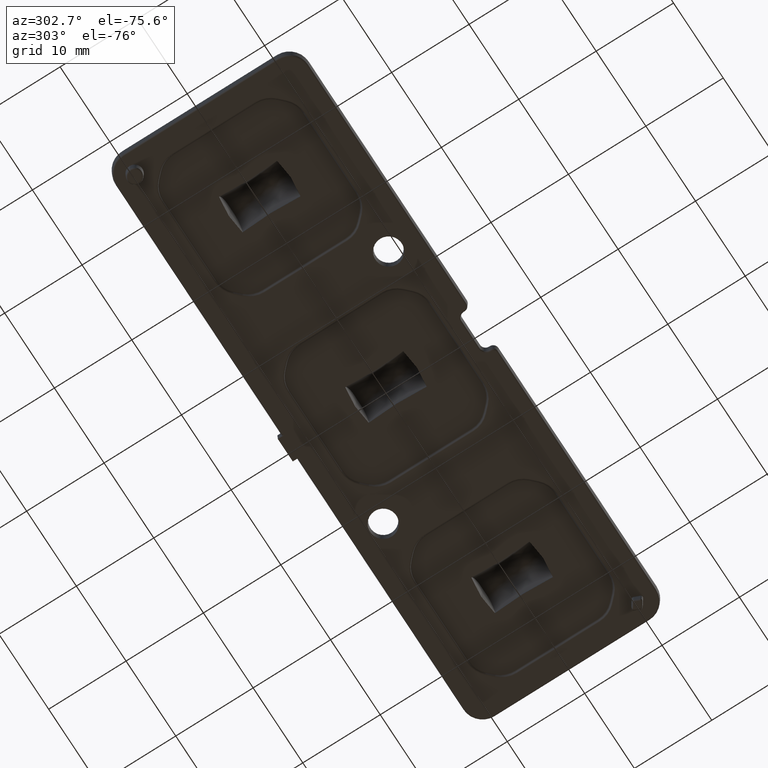
[diagram: clean part render]
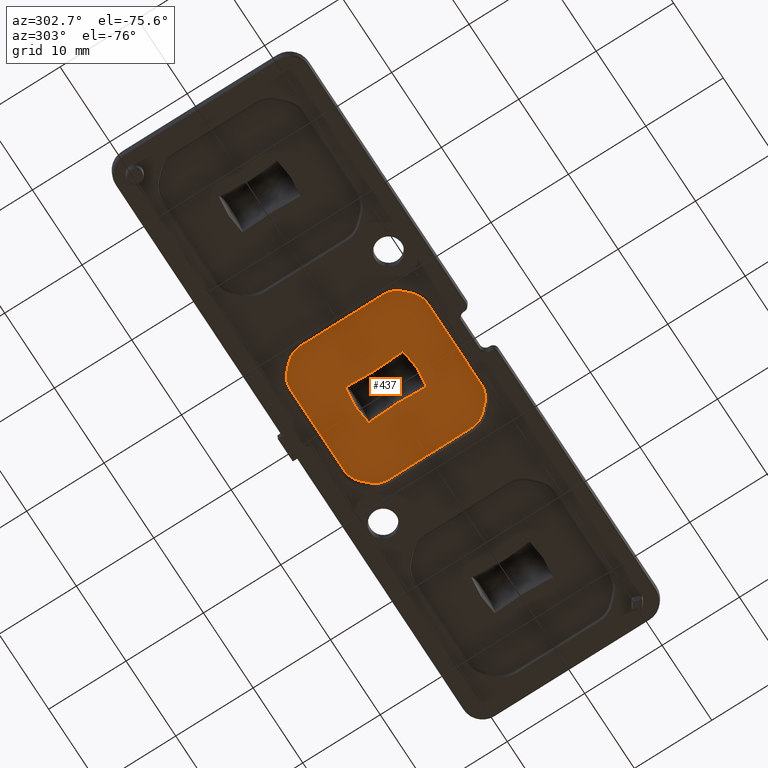
[diagram: same view with one face highlighted and labeled with its STEP entity id]
A machine part, auxiliary view. The second image highlights one B-rep face of the part: STEP entity #437.
In plain terms, the highlighted planar face has unit normal (0, 0, -1).
Its self-contained STEP definition (entity closure, byte-faithful):
#30 = EDGE_CURVE ( 'NONE', #14069, #11432, #7091, .T. ) ;
#173 = EDGE_LOOP ( 'NONE', ( #11228, #3053, #4585, #1215, #9736, #1492 ) ) ;
#214 = CARTESIAN_POINT ( 'NONE',  ( -2.362073830041534700, -3.744129337504881900, 0.3000000000000000400 ) ) ;
#219 = CIRCLE ( 'NONE', #9146, 2.790225092205679000 ) ;
#281 = VERTEX_POINT ( 'NONE', #12217 ) ;
#312 = CARTESIAN_POINT ( 'NONE',  ( 8.890225092205673400, 5.357359312880708700, 0.2999999999999999900 ) ) ;
#392 = CARTESIAN_POINT ( 'NONE',  ( -2.199999999999997100, -3.545636976993277500E-007, 0.3000000000000000400 ) ) ;
#400 = ORIENTED_EDGE ( 'NONE', *, *, #8090, .T. ) ;
#419 = AXIS2_PLACEMENT_3D ( 'NONE', #12160, #4076, #13505 ) ;
#437 = ADVANCED_FACE ( 'NONE', ( #2035, #5607 ), #5773, .T. ) ;
#485 = CARTESIAN_POINT ( 'NONE',  ( 7.701666740175849800, -7.701666740175848100, 0.2999999999999999900 ) ) ;
#531 = CARTESIAN_POINT ( 'NONE',  ( -2.362073880584316700, 3.744129328662838300, 0.3000000000000000400 ) ) ;
#746 = VECTOR ( 'NONE', #8580, 1000.000000000000000 ) ;
#748 = DIRECTION ( 'NONE',  ( -0.0000000000000000000, 1.000000000000000000, -0.0000000000000000000 ) ) ;
#1012 = ORIENTED_EDGE ( 'NONE', *, *, #6165, .T. ) ;
#1046 = EDGE_CURVE ( 'NONE', #12745, #14069, #9596, .T. ) ;
#1047 = CARTESIAN_POINT ( 'NONE',  ( 2.206479188001532000, -0.4685117543539306700, 0.3000000000000000400 ) ) ;
#1068 = CARTESIAN_POINT ( 'NONE',  ( 2.362073830041583600, -3.744129337504875200, 0.3000000000000000400 ) ) ;
#1141 = ORIENTED_EDGE ( 'NONE', *, *, #16442, .T. ) ;
#1204 = VECTOR ( 'NONE', #4604, 1000.000000000000000 ) ;
#1215 = ORIENTED_EDGE ( 'NONE', *, *, #1486, .F. ) ;
#1217 = CARTESIAN_POINT ( 'NONE',  ( 6.938893903907228400E-015, -4.000000000000014200, 0.3000000000000000400 ) ) ;
#1248 = CARTESIAN_POINT ( 'NONE',  ( -8.072987083735489100, 7.330346396616205200, 0.2999999999999999900 ) ) ;
#1275 = CARTESIAN_POINT ( 'NONE',  ( -1.010019015812022800, 3.928143010257483700, 0.3000000000000000400 ) ) ;
#1399 = CARTESIAN_POINT ( 'NONE',  ( 0.1509800672689666500, 3.999927608768775400, 0.3000000000000000400 ) ) ;
#1457 = CARTESIAN_POINT ( 'NONE',  ( 0.6853240526263626500, 3.962021650669374000, 0.3000000000000000400 ) ) ;
#1474 = EDGE_CURVE ( 'NONE', #8255, #9695, #6101, .T. ) ;
#1486 = EDGE_CURVE ( 'NONE', #4560, #13364, #2998, .T. ) ;
#1492 = ORIENTED_EDGE ( 'NONE', *, *, #15176, .F. ) ;
#1606 = CIRCLE ( 'NONE', #16899, 2.790225092205679900 ) ;
#1629 = CARTESIAN_POINT ( 'NONE',  ( 2.362073830042686700, 3.744129337504655800, 0.3000000000000000400 ) ) ;
#1652 = AXIS2_PLACEMENT_3D ( 'NONE', #6841, #16285, #8207 ) ;
#1916 = CARTESIAN_POINT ( 'NONE',  ( 8.890225092205675100, 0.0000000000000000000, 0.2999999999999999900 ) ) ;
#2003 = CARTESIAN_POINT ( 'NONE',  ( -2.206479171851506200, 0.4685110867219399700, 0.3000000000000000400 ) ) ;
#2035 = FACE_OUTER_BOUND ( 'NONE', #15874, .T. ) ;
#2171 = ORIENTED_EDGE ( 'NONE', *, *, #16542, .T. ) ;
#2334 = DIRECTION ( 'NONE',  ( -1.000000000000000000, 1.314184451497582200E-016, -0.0000000000000000000 ) ) ;
#2369 = CARTESIAN_POINT ( 'NONE',  ( 2.330037574450313900, 3.375467561259160000, 0.3000000000000000400 ) ) ;
#2424 = CARTESIAN_POINT ( 'NONE',  ( 2.220486613060058500, -0.9369320101880079800, 0.3000000000000000400 ) ) ;
#2509 = EDGE_CURVE ( 'NONE', #13907, #12400, #16549, .T. ) ;
#2614 = LINE ( 'NONE', #10209, #13767 ) ;
#2646 = CARTESIAN_POINT ( 'NONE',  ( -0.4170954187045876600, 3.981049587049527300, 0.3000000000000000400 ) ) ;
#2831 = CARTESIAN_POINT ( 'NONE',  ( 1.352062703873217800, 3.892454205604375600, 0.3000000000000000400 ) ) ;
#2889 = CARTESIAN_POINT ( 'NONE',  ( -1.010019015811429500, -3.928143010257573000, 0.3000000000000000400 ) ) ;
#2929 = AXIS2_PLACEMENT_3D ( 'NONE', #4798, #14235, #6161 ) ;
#2975 = CARTESIAN_POINT ( 'NONE',  ( 2.362073830041583600, -3.744129337504875200, 0.3000000000000000400 ) ) ;
#2980 = B_SPLINE_CURVE_WITH_KNOTS ( 'NONE', 2,
 ( #1068, #17233, #3811, #13228, #5141, #14581, #6500, #15939, #7856 ),
 .UNSPECIFIED., .F., .F.,
 ( 3, 2, 2, 2, 3 ),
 ( 0.0000000000000000000, 0.2500000000000000000, 0.5000000000000000000, 0.7500000000000000000, 1.000000000000000000 ),
 .UNSPECIFIED. ) ;
#2998 = B_SPLINE_CURVE_WITH_KNOTS ( 'NONE', 2,
 ( #9602, #8240, #16317, #10945, #2889, #12301, #4224, #13657, #5578 ),
 .UNSPECIFIED., .F., .F.,
 ( 3, 2, 2, 2, 3 ),
 ( 0.0000000000000000000, 0.2500000000000000000, 0.5000000000000000000, 0.7500000000000000000, 1.000000000000000000 ),
 .UNSPECIFIED. ) ;
#3053 = ORIENTED_EDGE ( 'NONE', *, *, #15651, .F. ) ;
#3139 = CARTESIAN_POINT ( 'NONE',  ( 0.0000000000000000000, 0.0000000000000000000, 0.2999999999999999900 ) ) ;
#3360 = CARTESIAN_POINT ( 'NONE',  ( -2.220486593514228200, 0.9369314072461589800, 0.3000000000000000400 ) ) ;
#3400 = VERTEX_POINT ( 'NONE', #15183 ) ;
#3467 = VERTEX_POINT ( 'NONE', #531 ) ;
#3564 = CARTESIAN_POINT ( 'NONE',  ( -8.890225092205673400, -5.357359312880709500, 0.2999999999999999900 ) ) ;
#3724 = CARTESIAN_POINT ( 'NONE',  ( 2.273427146593152100, 2.334609663762403600, 0.3000000000000000400 ) ) ;
#3788 = CARTESIAN_POINT ( 'NONE',  ( 2.254173029359672700, -1.873504581213246000, 0.3000000000000000400 ) ) ;
#3811 = CARTESIAN_POINT ( 'NONE',  ( 1.688451562523236800, -3.847197262713006400, 0.3000000000000000400 ) ) ;
#3881 = EDGE_CURVE ( 'NONE', #12400, #12745, #2614, .T. ) ;
#3990 = CARTESIAN_POINT ( 'NONE',  ( 6.938893903907228400E-015, 3.999999999999986200, 0.3000000000000000400 ) ) ;
#4076 = DIRECTION ( 'NONE',  ( 0.0000000000000000000, 0.0000000000000000000, -1.000000000000000000 ) ) ;
#4169 = CARTESIAN_POINT ( 'NONE',  ( 2.053552980093090100, 3.798077401636611700, 0.3000000000000000400 ) ) ;
#4224 = CARTESIAN_POINT ( 'NONE',  ( -1.688451562523188200, -3.847197262713011800, 0.3000000000000000400 ) ) ;
#4244 = CARTESIAN_POINT ( 'NONE',  ( 5.357359312880708700, -8.890225092205678700, 0.2999999999999999900 ) ) ;
#4383 = EDGE_CURVE ( 'NONE', #281, #13907, #4663, .T. ) ;
#4390 = DIRECTION ( 'NONE',  ( 0.0000000000000000000, 0.0000000000000000000, -1.000000000000000000 ) ) ;
#4392 = VECTOR ( 'NONE', #2334, 1000.000000000000000 ) ;
#4400 = CARTESIAN_POINT ( 'NONE',  ( -2.273427161282055100, -2.334609955197667600, 0.3000000000000000400 ) ) ;
#4455 = CARTESIAN_POINT ( 'NONE',  ( -7.330346396616205200, 8.072987083735489100, 0.2999999999999999900 ) ) ;
#4560 = VERTEX_POINT ( 'NONE', #1217 ) ;
#4585 = ORIENTED_EDGE ( 'NONE', *, *, #17357, .F. ) ;
#4604 = DIRECTION ( 'NONE',  ( -0.0000000000000000000, -1.000000000000000000, -0.0000000000000000000 ) ) ;
#4641 = LINE ( 'NONE', #10267, #15007 ) ;
#4663 = LINE ( 'NONE', #14180, #15029 ) ;
#4689 = CARTESIAN_POINT ( 'NONE',  ( -2.254173012929086500, 1.873504185054094300, 0.3000000000000000400 ) ) ;
#4759 = LINE ( 'NONE', #485, #746 ) ;
#4774 = LINE ( 'NONE', #1916, #1204 ) ;
#4798 = CARTESIAN_POINT ( 'NONE',  ( 5.357359312880708700, 6.099999999999995200, 0.2999999999999999900 ) ) ;
#5056 = CARTESIAN_POINT ( 'NONE',  ( 2.239021818563391400, 1.510657491818444600, 0.3000000000000000400 ) ) ;
#5121 = CARTESIAN_POINT ( 'NONE',  ( 2.299258490146030000, -2.809553219174315300, 0.3000000000000000400 ) ) ;
#5141 = CARTESIAN_POINT ( 'NONE',  ( 1.010019015811478100, -3.928143010257570300, 0.3000000000000000400 ) ) ;
#5173 = EDGE_CURVE ( 'NONE', #15887, #281, #11419, .T. ) ;
#5184 = CARTESIAN_POINT ( 'NONE',  ( -5.357359312880708700, 6.099999999999993400, 0.2999999999999999900 ) ) ;
#5343 = CARTESIAN_POINT ( 'NONE',  ( 8.890225092205675100, -5.357359312880710400, 0.2999999999999999900 ) ) ;
#5578 = CARTESIAN_POINT ( 'NONE',  ( -2.362073830041534700, -3.744129337504881900, 0.3000000000000000400 ) ) ;
#5607 = FACE_BOUND ( 'NONE', #173, .T. ) ;
#5756 = CARTESIAN_POINT ( 'NONE',  ( -2.239021834358080100, -1.510657922335606700, 0.3000000000000000400 ) ) ;
#5773 = PLANE ( 'NONE',  #10916 ) ;
#5869 = VERTEX_POINT ( 'NONE', #312 ) ;
#6050 = CARTESIAN_POINT ( 'NONE',  ( -2.299258481381127900, 2.809553059084732900, 0.3000000000000000400 ) ) ;
#6101 = B_SPLINE_CURVE_WITH_KNOTS ( 'NONE', 2,
 ( #13542, #1399, #14905, #1457, #10888, #2831, #12243, #4169, #13596 ),
 .UNSPECIFIED., .F., .F.,
 ( 3, 2, 2, 2, 3 ),
 ( 0.0000000000000000000, 0.2500000000000000000, 0.5000000000000000000, 0.7500000000000000000, 1.000000000000000000 ),
 .UNSPECIFIED. ) ;
#6102 = DIRECTION ( 'NONE',  ( -0.7071067811865476800, 0.7071067811865474600, -0.0000000000000000000 ) ) ;
#6161 = DIRECTION ( 'NONE',  ( -1.000000000000000000, 0.0000000000000000000, 0.0000000000000000000 ) ) ;
#6165 = EDGE_CURVE ( 'NONE', #6311, #15887, #7998, .T. ) ;
#6303 = ORIENTED_EDGE ( 'NONE', *, *, #15428, .T. ) ;
#6311 = VERTEX_POINT ( 'NONE', #4244 ) ;
#6379 = CARTESIAN_POINT ( 'NONE',  ( -6.099999999999993400, 5.357359312880708700, 0.2999999999999999900 ) ) ;
#6416 = CARTESIAN_POINT ( 'NONE',  ( 2.210161549615244200, 0.6173373913373266800, 0.3000000000000000400 ) ) ;
#6477 = CARTESIAN_POINT ( 'NONE',  ( 2.362073830041583600, -3.744129337504875200, 0.3000000000000000400 ) ) ;
#6500 = CARTESIAN_POINT ( 'NONE',  ( 0.4170954187043760000, -3.981049587049569900, 0.3000000000000000400 ) ) ;
#6539 = DIRECTION ( 'NONE',  ( -1.000000000000000000, 0.0000000000000000000, 0.0000000000000000000 ) ) ;
#6599 = VERTEX_POINT ( 'NONE', #13330 ) ;
#6609 = CARTESIAN_POINT ( 'NONE',  ( -5.357359312880709500, -6.099999999999993400, 0.2999999999999999900 ) ) ;
#6841 = CARTESIAN_POINT ( 'NONE',  ( 6.099999999999993400, -5.357359312880709500, 0.2999999999999999900 ) ) ;
#7023 = CARTESIAN_POINT ( 'NONE',  ( 5.357359312880708700, 8.890225092205675100, 0.2999999999999999900 ) ) ;
#7091 = LINE ( 'NONE', #10115, #13842 ) ;
#7115 = CARTESIAN_POINT ( 'NONE',  ( -2.210161565520132800, -0.6173379129512068800, 0.3000000000000000400 ) ) ;
#7120 = CARTESIAN_POINT ( 'NONE',  ( -8.890225092205675100, 5.357359312880708700, 0.2999999999999999900 ) ) ;
#7191 = DIRECTION ( 'NONE',  ( 0.0000000000000000000, 0.0000000000000000000, -1.000000000000000000 ) ) ;
#7409 = CARTESIAN_POINT ( 'NONE',  ( -2.362073880584316700, 3.744129328662838300, 0.3000000000000000400 ) ) ;
#7534 = DIRECTION ( 'NONE',  ( 1.000000000000000000, 1.314184451497582200E-016, -0.0000000000000000000 ) ) ;
#7731 = DIRECTION ( 'NONE',  ( -1.000000000000000000, 0.0000000000000000000, 0.0000000000000000000 ) ) ;
#7778 = CARTESIAN_POINT ( 'NONE',  ( 2.199991898595044000, 0.2063226400510336000, 0.3000000000000000400 ) ) ;
#7856 = CARTESIAN_POINT ( 'NONE',  ( 6.938893903907228400E-015, -4.000000000000014200, 0.3000000000000000400 ) ) ;
#7944 = DIRECTION ( 'NONE',  ( 0.0000000000000000000, 0.0000000000000000000, -1.000000000000000000 ) ) ;
#7964 = DIRECTION ( 'NONE',  ( -1.000000000000000000, 0.0000000000000000000, 0.0000000000000000000 ) ) ;
#7998 = LINE ( 'NONE', #10352, #4392 ) ;
#8090 = EDGE_CURVE ( 'NONE', #14772, #6311, #1606, .T. ) ;
#8185 = EDGE_CURVE ( 'NONE', #6599, #14772, #4759, .T. ) ;
#8207 = DIRECTION ( 'NONE',  ( -1.000000000000000000, 0.0000000000000000000, 0.0000000000000000000 ) ) ;
#8240 = CARTESIAN_POINT ( 'NONE',  ( -0.1509800672723320100, -3.999927608768802900, 0.3000000000000000400 ) ) ;
#8255 = VERTEX_POINT ( 'NONE', #15479 ) ;
#8433 = CARTESIAN_POINT ( 'NONE',  ( -2.330037578500737000, -3.375467607947582900, 0.3000000000000000400 ) ) ;
#8448 = AXIS2_PLACEMENT_3D ( 'NONE', #6379, #15815, #7731 ) ;
#8475 = CARTESIAN_POINT ( 'NONE',  ( -2.362073830041534700, -3.744129337504881900, 0.3000000000000000400 ) ) ;
#8488 = CARTESIAN_POINT ( 'NONE',  ( -2.199991908778824900, -0.2063233063428913100, 0.3000000000000000400 ) ) ;
#8565 = CARTESIAN_POINT ( 'NONE',  ( -5.357359312880709500, -8.890225092205676900, 0.2999999999999999900 ) ) ;
#8580 = DIRECTION ( 'NONE',  ( -0.7071067811865474600, -0.7071067811865476800, -0.0000000000000000000 ) ) ;
#8584 = AXIS2_PLACEMENT_3D ( 'NONE', #6609, #16052, #7964 ) ;
#8615 = CARTESIAN_POINT ( 'NONE',  ( -5.357359312880708700, 8.890225092205673400, 0.2999999999999999900 ) ) ;
#8969 = VECTOR ( 'NONE', #12017, 1000.000000000000000 ) ;
#9137 = CARTESIAN_POINT ( 'NONE',  ( 2.200008142793929100, -0.2073773898996218700, 0.3000000000000000400 ) ) ;
#9146 = AXIS2_PLACEMENT_3D ( 'NONE', #5184, #14620, #6539 ) ;
#9152 = CIRCLE ( 'NONE', #2929, 2.790225092205679900 ) ;
#9164 = AXIS2_PLACEMENT_3D ( 'NONE', #16036, #7944, #17382 ) ;
#9212 = EDGE_CURVE ( 'NONE', #14531, #6599, #16573, .T. ) ;
#9287 = VERTEX_POINT ( 'NONE', #2975 ) ;
#9364 = CARTESIAN_POINT ( 'NONE',  ( -1.353126066823275600, 3.892327341186200500, 0.3000000000000000400 ) ) ;
#9596 = CIRCLE ( 'NONE', #8448, 2.790225092205679900 ) ;
#9602 = CARTESIAN_POINT ( 'NONE',  ( 6.938893903907228400E-015, -4.000000000000014200, 0.3000000000000000400 ) ) ;
#9608 = ORIENTED_EDGE ( 'NONE', *, *, #3881, .T. ) ;
#9695 = VERTEX_POINT ( 'NONE', #1629 ) ;
#9736 = ORIENTED_EDGE ( 'NONE', *, *, #16187, .F. ) ;
#9846 = CARTESIAN_POINT ( 'NONE',  ( -2.200008132560080700, 0.2073767231299182000, 0.3000000000000000400 ) ) ;
#10115 = CARTESIAN_POINT ( 'NONE',  ( -7.701666740175849000, 7.701666740175846300, 0.2999999999999999900 ) ) ;
#10206 = ORIENTED_EDGE ( 'NONE', *, *, #8185, .T. ) ;
#10209 = CARTESIAN_POINT ( 'NONE',  ( -8.890225092205675100, 0.0000000000000000000, 0.2999999999999999900 ) ) ;
#10267 = CARTESIAN_POINT ( 'NONE',  ( -1.168339558649035900E-015, 8.890225092205675100, 0.2999999999999999900 ) ) ;
#10352 = CARTESIAN_POINT ( 'NONE',  ( -1.168339558649036100E-015, -8.890225092205676900, 0.2999999999999999900 ) ) ;
#10492 = CARTESIAN_POINT ( 'NONE',  ( 2.210189081648904300, -0.6182218380760263800, 0.3000000000000000400 ) ) ;
#10701 = CARTESIAN_POINT ( 'NONE',  ( -0.6864493720040234500, 3.961919242048651300, 0.3000000000000000400 ) ) ;
#10820 = ORIENTED_EDGE ( 'NONE', *, *, #4383, .T. ) ;
#10888 = CARTESIAN_POINT ( 'NONE',  ( 1.010019015812036600, 3.928143010257483700, 0.3000000000000000400 ) ) ;
#10916 = AXIS2_PLACEMENT_3D ( 'NONE', #3139, #7191, #16634 ) ;
#10945 = CARTESIAN_POINT ( 'NONE',  ( -0.6853240526335964100, -3.962021650668645200, 0.3000000000000000400 ) ) ;
#10989 = ORIENTED_EDGE ( 'NONE', *, *, #11615, .T. ) ;
#11032 = VERTEX_POINT ( 'NONE', #13490 ) ;
#11155 = VERTEX_POINT ( 'NONE', #8615 ) ;
#11228 = ORIENTED_EDGE ( 'NONE', *, *, #1474, .F. ) ;
#11419 = CIRCLE ( 'NONE', #8584, 2.790225092205680800 ) ;
#11432 = VERTEX_POINT ( 'NONE', #4455 ) ;
#11433 = CARTESIAN_POINT ( 'NONE',  ( -2.210189065722852200, 0.6182213158610523300, 0.3000000000000000400 ) ) ;
#11459 = DIRECTION ( 'NONE',  ( 0.7071067811865474600, 0.7071067811865476800, -0.0000000000000000000 ) ) ;
#11493 = ORIENTED_EDGE ( 'NONE', *, *, #5173, .T. ) ;
#11615 = EDGE_CURVE ( 'NONE', #11032, #5869, #12183, .T. ) ;
#11736 = CARTESIAN_POINT ( 'NONE',  ( 2.362073830042686700, 3.744129337504655800, 0.3000000000000000400 ) ) ;
#11785 = CARTESIAN_POINT ( 'NONE',  ( 2.299258482324036700, 2.809553076418127100, 0.3000000000000000400 ) ) ;
#11842 = CARTESIAN_POINT ( 'NONE',  ( 2.239050613982000100, -1.511490677958511100, 0.3000000000000000400 ) ) ;
#12017 = DIRECTION ( 'NONE',  ( 0.7071067811865472400, -0.7071067811865479100, -0.0000000000000000000 ) ) ;
#12019 = EDGE_CURVE ( 'NONE', #5869, #14531, #4774, .T. ) ;
#12069 = CARTESIAN_POINT ( 'NONE',  ( -0.1512962948534701800, 3.999927457145421500, 0.3000000000000000400 ) ) ;
#12160 = CARTESIAN_POINT ( 'NONE',  ( -6.099999999999993400, -5.357359312880709500, 0.2999999999999999900 ) ) ;
#12183 = CIRCLE ( 'NONE', #9164, 2.790225092205679900 ) ;
#12217 = CARTESIAN_POINT ( 'NONE',  ( -7.330346396616206100, -8.072987083735489100, 0.2999999999999999900 ) ) ;
#12243 = CARTESIAN_POINT ( 'NONE',  ( 1.688451562524128500, 3.847197262712859000, 0.3000000000000000400 ) ) ;
#12301 = CARTESIAN_POINT ( 'NONE',  ( -1.352062703862719300, -3.892454205605496900, 0.3000000000000000400 ) ) ;
#12400 = VERTEX_POINT ( 'NONE', #3564 ) ;
#12469 = CARTESIAN_POINT ( 'NONE',  ( 5.357359312880708700, -6.099999999999995200, 0.2999999999999999900 ) ) ;
#12479 = CARTESIAN_POINT ( 'NONE',  ( -2.299258491088910900, -2.809553236507722500, 0.3000000000000000400 ) ) ;
#12527 = LINE ( 'NONE', #13368, #8969 ) ;
#12745 = VERTEX_POINT ( 'NONE', #7120 ) ;
#12765 = CARTESIAN_POINT ( 'NONE',  ( -2.239050598193400400, 1.511490247740725500, 0.3000000000000000400 ) ) ;
#13142 = CARTESIAN_POINT ( 'NONE',  ( 2.254173013653548700, 1.873504202400076800, 0.3000000000000000400 ) ) ;
#13203 = CARTESIAN_POINT ( 'NONE',  ( 2.273489648053308900, -2.335923074312670000, 0.3000000000000000400 ) ) ;
#13228 = CARTESIAN_POINT ( 'NONE',  ( 1.353126066813682600, -3.892327341187224100, 0.3000000000000000400 ) ) ;
#13330 = CARTESIAN_POINT ( 'NONE',  ( 8.072987083735489100, -7.330346396616207900, 0.2999999999999999900 ) ) ;
#13364 = VERTEX_POINT ( 'NONE', #8475 ) ;
#13368 = CARTESIAN_POINT ( 'NONE',  ( 7.701666740175849800, 7.701666740175842700, 0.2999999999999999900 ) ) ;
#13440 = B_SPLINE_CURVE_WITH_KNOTS ( 'NONE', 2,
 ( #214, #8433, #12479, #4400, #13836, #5756, #15205, #7115, #16560, #8488, #392, #9846, #2003, #11433, #3360, #12765, #4689, #14131, #6050, #15500, #7409 ),
 .UNSPECIFIED., .F., .F.,
 ( 3, 2, 2, 2, 2, 2, 2, 2, 2, 2, 3 ),
 ( 0.0000000000000000000, 0.1250000000000000000, 0.2500000000000000000, 0.3750000000000000000, 0.4375000000000000000, 0.5000000000000000000, 0.5625000000000000000, 0.6250000000000000000, 0.7500000000000000000, 0.8750000000000000000, 1.000000000000000000 ),
 .UNSPECIFIED. ) ;
#13490 = CARTESIAN_POINT ( 'NONE',  ( 8.072987083735489100, 7.330346396616206100, 0.2999999999999999900 ) ) ;
#13505 = DIRECTION ( 'NONE',  ( -1.000000000000000000, 0.0000000000000000000, 0.0000000000000000000 ) ) ;
#13523 = ORIENTED_EDGE ( 'NONE', *, *, #12019, .T. ) ;
#13542 = CARTESIAN_POINT ( 'NONE',  ( 6.938893903907228400E-015, 3.999999999999986200, 0.3000000000000000400 ) ) ;
#13596 = CARTESIAN_POINT ( 'NONE',  ( 2.362073830042686700, 3.744129337504655800, 0.3000000000000000400 ) ) ;
#13657 = CARTESIAN_POINT ( 'NONE',  ( -2.053552980083830400, -3.798077401638227300, 0.3000000000000000400 ) ) ;
#13767 = VECTOR ( 'NONE', #748, 1000.000000000000000 ) ;
#13828 = DIRECTION ( 'NONE',  ( -1.000000000000000000, 0.0000000000000000000, 0.0000000000000000000 ) ) ;
#13836 = CARTESIAN_POINT ( 'NONE',  ( -2.254173030084107000, -1.873504598559234900, 0.3000000000000000400 ) ) ;
#13842 = VECTOR ( 'NONE', #11459, 1000.000000000000000 ) ;
#13907 = VERTEX_POINT ( 'NONE', #14394 ) ;
#14069 = VERTEX_POINT ( 'NONE', #1248 ) ;
#14120 = ORIENTED_EDGE ( 'NONE', *, *, #9212, .T. ) ;
#14131 = CARTESIAN_POINT ( 'NONE',  ( -2.273489633366057500, 2.335922783022777800, 0.3000000000000000400 ) ) ;
#14180 = CARTESIAN_POINT ( 'NONE',  ( -7.701666740175846300, -7.701666740175849000, 0.2999999999999999900 ) ) ;
#14235 = DIRECTION ( 'NONE',  ( 0.0000000000000000000, 0.0000000000000000000, -1.000000000000000000 ) ) ;
#14394 = CARTESIAN_POINT ( 'NONE',  ( -8.072987083735489100, -7.330346396616206100, 0.2999999999999999900 ) ) ;
#14427 = EDGE_CURVE ( 'NONE', #3400, #11032, #12527, .T. ) ;
#14497 = CARTESIAN_POINT ( 'NONE',  ( 2.220486594074904600, 0.9369314245997143500, 0.3000000000000000400 ) ) ;
#14531 = VERTEX_POINT ( 'NONE', #5343 ) ;
#14556 = CARTESIAN_POINT ( 'NONE',  ( 2.330066119088338700, -3.375796037004011700, 0.3000000000000000400 ) ) ;
#14581 = CARTESIAN_POINT ( 'NONE',  ( 0.6864493720037702100, -3.961919242048714800, 0.3000000000000000400 ) ) ;
#14620 = DIRECTION ( 'NONE',  ( 0.0000000000000000000, 0.0000000000000000000, -1.000000000000000000 ) ) ;
#14723 = CARTESIAN_POINT ( 'NONE',  ( -2.053990879922432000, 3.798000830318719600, 0.3000000000000000400 ) ) ;
#14772 = VERTEX_POINT ( 'NONE', #15899 ) ;
#14800 = ORIENTED_EDGE ( 'NONE', *, *, #30, .T. ) ;
#14905 = CARTESIAN_POINT ( 'NONE',  ( 0.4170954187045980400, 3.981049587049527300, 0.3000000000000000400 ) ) ;
#14962 = B_SPLINE_CURVE_WITH_KNOTS ( 'NONE', 2,
 ( #11736, #2369, #11785, #3724, #13142, #5056, #14497, #6416, #15853, #7778, #17214, #9137, #1047, #10492, #2424, #11842, #3788, #13203, #5121, #14556, #6477 ),
 .UNSPECIFIED., .F., .F.,
 ( 3, 2, 2, 2, 2, 2, 2, 2, 2, 2, 3 ),
 ( 0.0000000000000000000, 0.1250000000000000000, 0.2500000000000000000, 0.3750000000000000000, 0.4375000000000000000, 0.5000000000000000000, 0.5625000000000000000, 0.6250000000000000000, 0.7500000000000000000, 0.8750000000000000000, 1.000000000000000000 ),
 .UNSPECIFIED. ) ;
#15007 = VECTOR ( 'NONE', #7534, 1000.000000000000000 ) ;
#15029 = VECTOR ( 'NONE', #6102, 1000.000000000000000 ) ;
#15176 = EDGE_CURVE ( 'NONE', #9695, #9287, #14962, .T. ) ;
#15183 = CARTESIAN_POINT ( 'NONE',  ( 7.330346396616207900, 8.072987083735489100, 0.2999999999999999900 ) ) ;
#15205 = CARTESIAN_POINT ( 'NONE',  ( -2.220486613620710400, -0.9369320275415650200, 0.3000000000000000400 ) ) ;
#15428 = EDGE_CURVE ( 'NONE', #15791, #3400, #9152, .T. ) ;
#15479 = CARTESIAN_POINT ( 'NONE',  ( 6.938893903907228400E-015, 3.999999999999986200, 0.3000000000000000400 ) ) ;
#15500 = CARTESIAN_POINT ( 'NONE',  ( -2.330066115042578500, 3.375795990369582900, 0.3000000000000000400 ) ) ;
#15651 = EDGE_CURVE ( 'NONE', #3467, #8255, #16791, .T. ) ;
#15791 = VERTEX_POINT ( 'NONE', #7023 ) ;
#15815 = DIRECTION ( 'NONE',  ( 0.0000000000000000000, 0.0000000000000000000, -1.000000000000000000 ) ) ;
#15853 = CARTESIAN_POINT ( 'NONE',  ( 2.206479172281297500, 0.4685111040785469000, 0.3000000000000000400 ) ) ;
#15874 = EDGE_LOOP ( 'NONE', ( #9608, #16107, #14800, #2171, #1141, #6303, #17259, #10989, #13523, #14120, #10206, #400, #1012, #11493, #10820, #16682 ) ) ;
#15887 = VERTEX_POINT ( 'NONE', #8565 ) ;
#15899 = CARTESIAN_POINT ( 'NONE',  ( 7.330346396616204400, -8.072987083735490900, 0.2999999999999999900 ) ) ;
#15939 = CARTESIAN_POINT ( 'NONE',  ( 0.1512962948532238500, -3.999927457145449500, 0.3000000000000000400 ) ) ;
#16036 = CARTESIAN_POINT ( 'NONE',  ( 6.099999999999993400, 5.357359312880708700, 0.2999999999999999900 ) ) ;
#16052 = DIRECTION ( 'NONE',  ( 0.0000000000000000000, 0.0000000000000000000, -1.000000000000000000 ) ) ;
#16079 = CARTESIAN_POINT ( 'NONE',  ( -2.362073880584316700, 3.744129328662838300, 0.3000000000000000400 ) ) ;
#16107 = ORIENTED_EDGE ( 'NONE', *, *, #1046, .T. ) ;
#16187 = EDGE_CURVE ( 'NONE', #9287, #4560, #2980, .T. ) ;
#16285 = DIRECTION ( 'NONE',  ( 0.0000000000000000000, 0.0000000000000000000, -1.000000000000000000 ) ) ;
#16317 = CARTESIAN_POINT ( 'NONE',  ( -0.4170954187043343600, -3.981049587049572600, 0.3000000000000000400 ) ) ;
#16442 = EDGE_CURVE ( 'NONE', #11155, #15791, #4641, .T. ) ;
#16542 = EDGE_CURVE ( 'NONE', #11432, #11155, #219, .T. ) ;
#16549 = CIRCLE ( 'NONE', #419, 2.790225092205679900 ) ;
#16560 = CARTESIAN_POINT ( 'NONE',  ( -2.206479188431295800, -0.4685117717105382600, 0.3000000000000000400 ) ) ;
#16573 = CIRCLE ( 'NONE', #1652, 2.790225092205679900 ) ;
#16634 = DIRECTION ( 'NONE',  ( -1.000000000000000000, 0.0000000000000000000, -0.0000000000000000000 ) ) ;
#16682 = ORIENTED_EDGE ( 'NONE', *, *, #2509, .T. ) ;
#16791 = B_SPLINE_CURVE_WITH_KNOTS ( 'NONE', 2,
 ( #16079, #14723, #17434, #9364, #1275, #10701, #2646, #12069, #3990 ),
 .UNSPECIFIED., .F., .F.,
 ( 3, 2, 2, 2, 3 ),
 ( 0.0000000000000000000, 0.2500000000000000000, 0.5000000000000000000, 0.7500000000000000000, 1.000000000000000000 ),
 .UNSPECIFIED. ) ;
#16899 = AXIS2_PLACEMENT_3D ( 'NONE', #12469, #4390, #13828 ) ;
#17214 = CARTESIAN_POINT ( 'NONE',  ( 2.200000000000010800, -3.372033762145689500E-007, 0.3000000000000000400 ) ) ;
#17233 = CARTESIAN_POINT ( 'NONE',  ( 2.053990879913751400, -3.798000830320240200, 0.3000000000000000400 ) ) ;
#17259 = ORIENTED_EDGE ( 'NONE', *, *, #14427, .T. ) ;
#17357 = EDGE_CURVE ( 'NONE', #13364, #3467, #13440, .T. ) ;
#17382 = DIRECTION ( 'NONE',  ( -1.000000000000000000, 0.0000000000000000000, 0.0000000000000000000 ) ) ;
#17434 = CARTESIAN_POINT ( 'NONE',  ( -1.688451562524118100, 3.847197262712859000, 0.3000000000000000400 ) ) ;